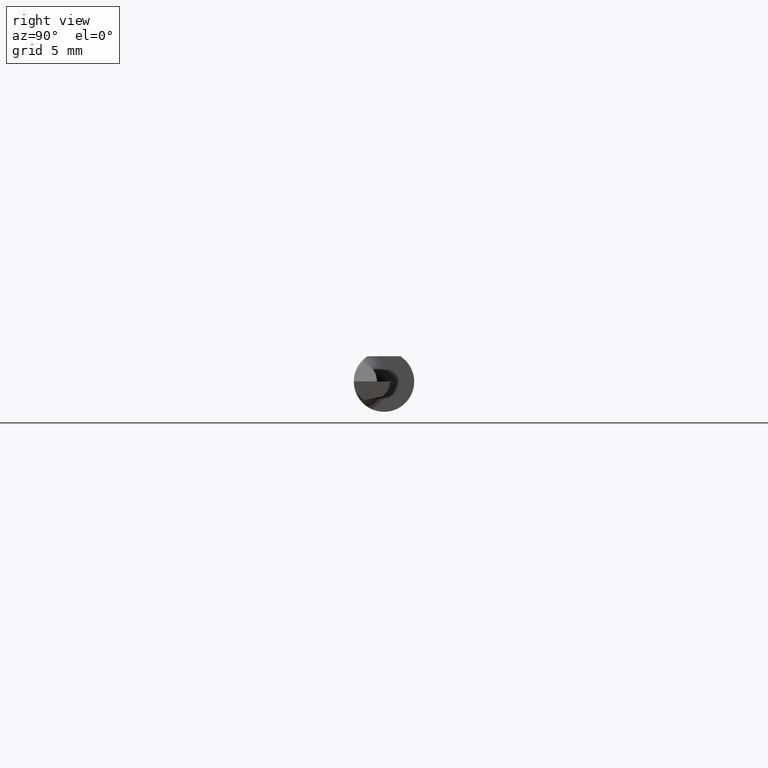
[diagram: clean part render]
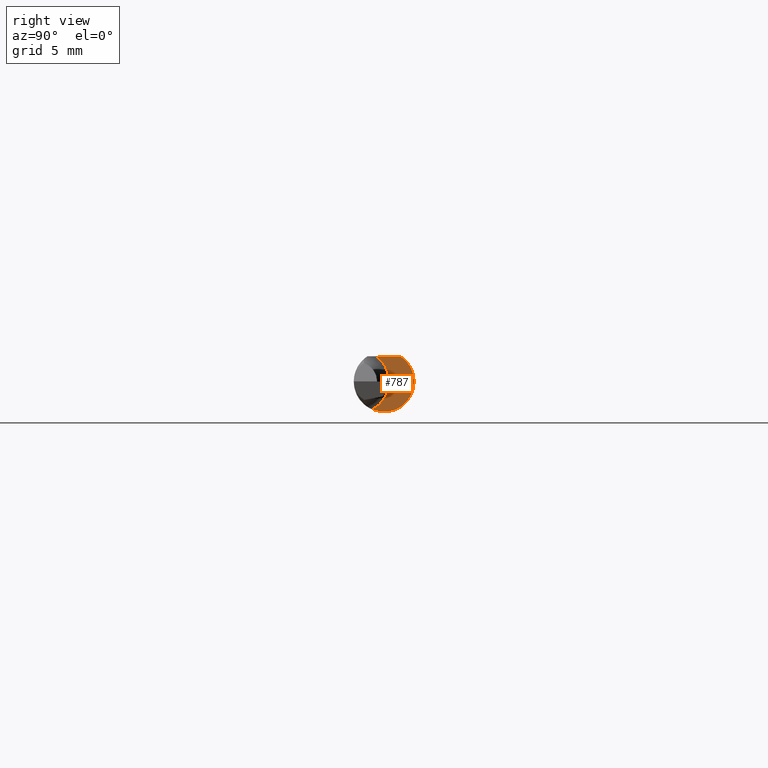
[diagram: same view with one face highlighted and labeled with its STEP entity id]
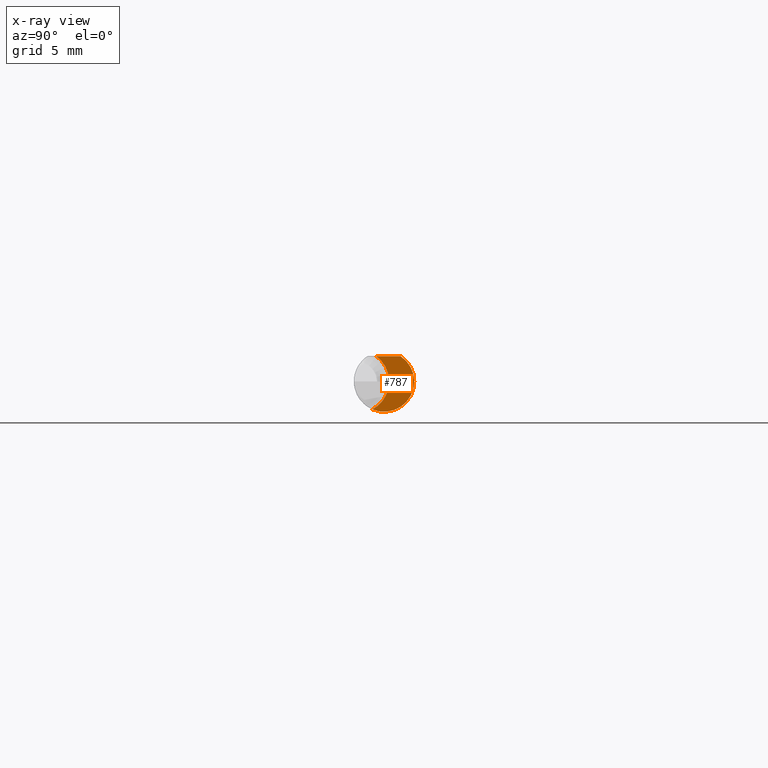
[diagram: x-ray of the same camera — body ghosted, the highlighted face saturated]
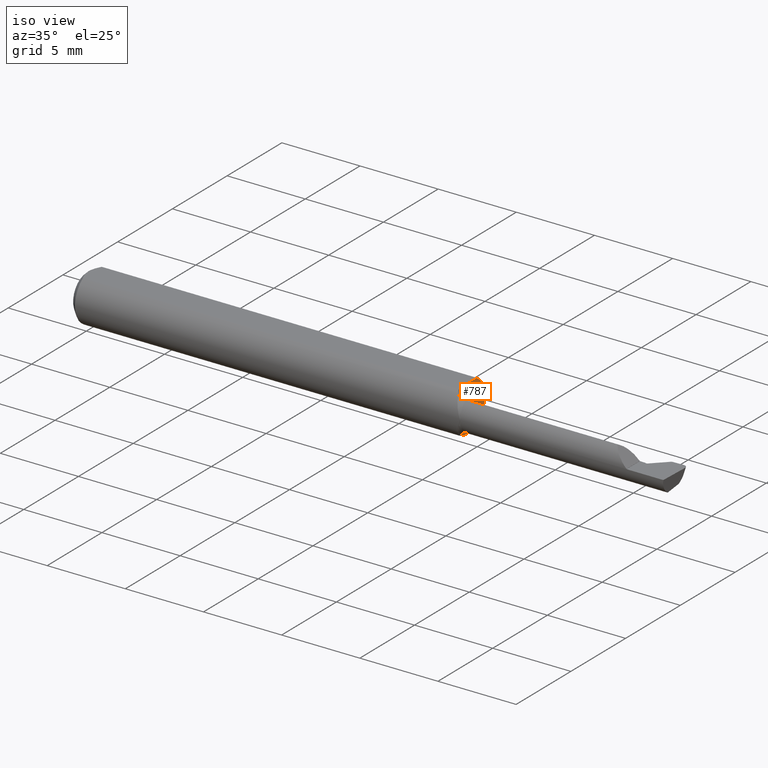
[diagram: same view with one face highlighted and labeled with its STEP entity id]
A machine part, right view. The second image highlights one B-rep face of the part: STEP entity #787.
The next image is the same camera in x-ray: the body ghosted, the highlighted face saturated — about 2% of this face is hidden behind the body in this view.
A second angle (iso view) of the same face is appended — the face is thin or edge-on in the first view.
In plain terms, the highlighted planar face has unit normal (1, 0, 0).
Its self-contained STEP definition (entity closure, byte-faithful):
#11 = EDGE_CURVE ( 'NONE', #315, #27, #25, .T. ) ;
#25 = CIRCLE ( 'NONE', #758, 0.06500000000000000222 ) ;
#27 = VERTEX_POINT ( 'NONE', #448 ) ;
#43 = ORIENTED_EDGE ( 'NONE', *, *, #376, .T. ) ;
#101 = VECTOR ( 'NONE', #612, 39.37007874015748143 ) ;
#111 = DIRECTION ( 'NONE',  ( 0.000000000000000000, 0.000000000000000000, -1.000000000000000000 ) ) ;
#151 = DIRECTION ( 'NONE',  ( 0.000000000000000000, 0.000000000000000000, -1.000000000000000000 ) ) ;
#186 = AXIS2_PLACEMENT_3D ( 'NONE', #747, #821, #151 ) ;
#204 = PLANE ( 'NONE',  #818 ) ;
#225 = CARTESIAN_POINT ( 'NONE',  ( 0.9600000000000001865, -0.01582108228875356293, 0.05235000000000000764 ) ) ;
#288 = FACE_OUTER_BOUND ( 'NONE', #694, .T. ) ;
#315 = VERTEX_POINT ( 'NONE', #225 ) ;
#328 = CIRCLE ( 'NONE', #186, 0.06235000000000000264 ) ;
#376 = EDGE_CURVE ( 'NONE', #654, #315, #555, .T. ) ;
#440 = ORIENTED_EDGE ( 'NONE', *, *, #11, .T. ) ;
#448 = CARTESIAN_POINT ( 'NONE',  ( 0.9600000000000001865, -0.02407033118675252700, -0.05751644683531875746 ) ) ;
#555 = LINE ( 'NONE', #825, #101 ) ;
#562 = DIRECTION ( 'NONE',  ( 1.000000000000000000, 0.000000000000000000, 0.000000000000000000 ) ) ;
#566 = CARTESIAN_POINT ( 'NONE',  ( 0.9600000000000001865, -0.05435000000000000248, 0.000000000000000000 ) ) ;
#576 = CARTESIAN_POINT ( 'NONE',  ( 0.9600000000000001865, 0.08565000000000001779, 0.000000000000000000 ) ) ;
#580 = ORIENTED_EDGE ( 'NONE', *, *, #663, .T. ) ;
#612 = DIRECTION ( 'NONE',  ( 0.000000000000000000, -1.000000000000000000, 0.000000000000000000 ) ) ;
#642 = DIRECTION ( 'NONE',  ( -1.000000000000000000, -0.000000000000000000, -0.000000000000000000 ) ) ;
#654 = VERTEX_POINT ( 'NONE', #692 ) ;
#663 = EDGE_CURVE ( 'NONE', #27, #654, #328, .T. ) ;
#692 = CARTESIAN_POINT ( 'NONE',  ( 0.9600000000000001865, 0.03386738844375219992, 0.05235000000000000764 ) ) ;
#694 = EDGE_LOOP ( 'NONE', ( #580, #43, #440 ) ) ;
#747 = CARTESIAN_POINT ( 'NONE',  ( 0.9600000000000001865, 0.000000000000000000, 0.000000000000000000 ) ) ;
#758 = AXIS2_PLACEMENT_3D ( 'NONE', #566, #642, #764 ) ;
#764 = DIRECTION ( 'NONE',  ( 0.000000000000000000, 9.193719209447037667E-16, -1.000000000000000000 ) ) ;
#787 = ADVANCED_FACE ( 'NONE', ( #288 ), #204, .T. ) ;
#818 = AXIS2_PLACEMENT_3D ( 'NONE', #576, #562, #111 ) ;
#821 = DIRECTION ( 'NONE',  ( 1.000000000000000000, 0.000000000000000000, 0.000000000000000000 ) ) ;
#825 = CARTESIAN_POINT ( 'NONE',  ( 0.9600000000000001865, 0.04793338999999999933, 0.05235000000000000764 ) ) ;